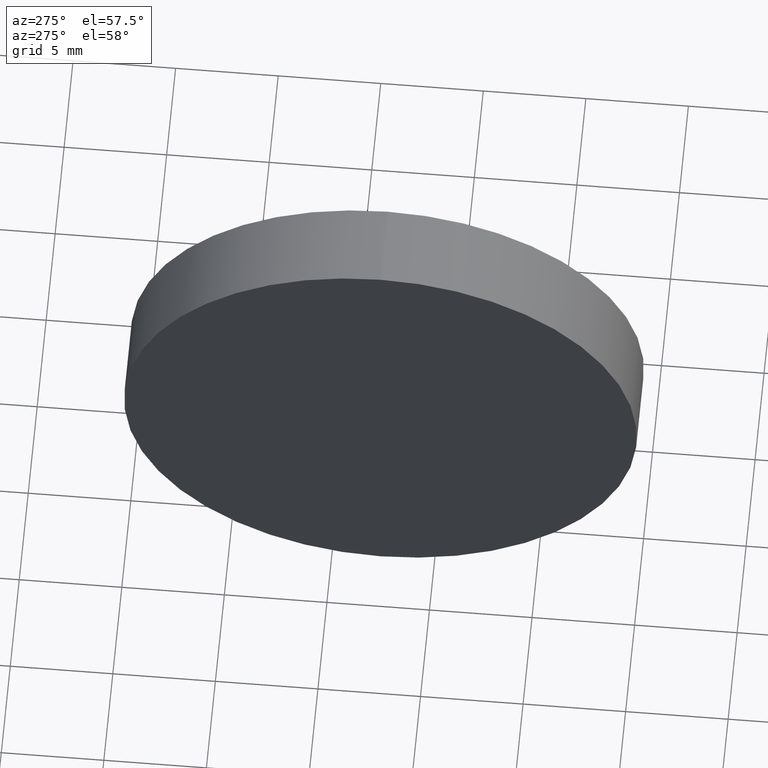
[diagram: clean part render]
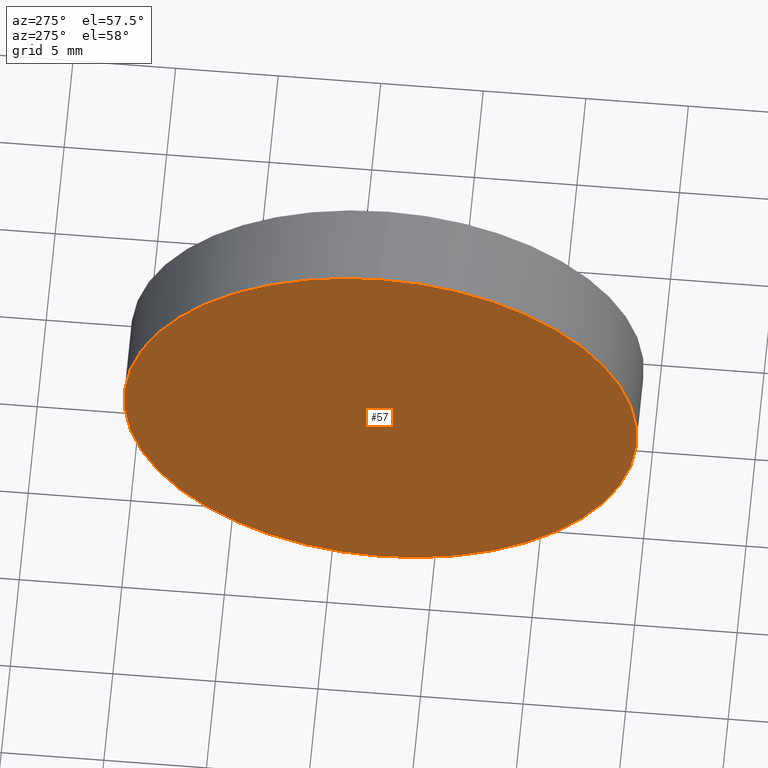
[diagram: same view with one face highlighted and labeled with its STEP entity id]
A machine part, auxiliary view. The second image highlights one B-rep face of the part: STEP entity #57.
In plain terms, the highlighted planar face has unit normal (1, 0, 0).
Its self-contained STEP definition (entity closure, byte-faithful):
#1 = ORIENTED_EDGE ( 'NONE', *, *, #24, .T. ) ;
#2 = CARTESIAN_POINT ( 'NONE',  ( 57.53233705252611700, 32.61076812922678400, 0.0000000000000000000 ) ) ;
#3 = DIRECTION ( 'NONE',  ( -1.000000000000000000, -0.0000000000000000000, -0.0000000000000000000 ) ) ;
#5 = CARTESIAN_POINT ( 'NONE',  ( 57.53233705252611700, 32.61076812922678400, -12.49999999999999600 ) ) ;
#15 = VERTEX_POINT ( 'NONE', #150 ) ;
#24 = EDGE_CURVE ( 'NONE', #15, #141, #40, .T. ) ;
#28 = DIRECTION ( 'NONE',  ( 0.0000000000000000000, 0.0000000000000000000, -1.000000000000000000 ) ) ;
#40 = CIRCLE ( 'NONE', #63, 12.49999999999999600 ) ;
#43 = DIRECTION ( 'NONE',  ( 0.0000000000000000000, 0.0000000000000000000, 1.000000000000000000 ) ) ;
#57 = ADVANCED_FACE ( 'NONE', ( #83 ), #162, .F. ) ;
#59 = AXIS2_PLACEMENT_3D ( 'NONE', #2, #3, #115 ) ;
#63 = AXIS2_PLACEMENT_3D ( 'NONE', #132, #78, #43 ) ;
#65 = AXIS2_PLACEMENT_3D ( 'NONE', #166, #108, #28 ) ;
#69 = EDGE_LOOP ( 'NONE', ( #1, #142 ) ) ;
#78 = DIRECTION ( 'NONE',  ( -1.000000000000000000, -0.0000000000000000000, -0.0000000000000000000 ) ) ;
#79 = CIRCLE ( 'NONE', #59, 12.49999999999999600 ) ;
#83 = FACE_OUTER_BOUND ( 'NONE', #69, .T. ) ;
#108 = DIRECTION ( 'NONE',  ( 1.000000000000000000, 0.0000000000000000000, 0.0000000000000000000 ) ) ;
#115 = DIRECTION ( 'NONE',  ( 0.0000000000000000000, 0.0000000000000000000, 1.000000000000000000 ) ) ;
#132 = CARTESIAN_POINT ( 'NONE',  ( 57.53233705252611700, 32.61076812922678400, 0.0000000000000000000 ) ) ;
#141 = VERTEX_POINT ( 'NONE', #5 ) ;
#142 = ORIENTED_EDGE ( 'NONE', *, *, #152, .T. ) ;
#150 = CARTESIAN_POINT ( 'NONE',  ( 57.53233705252611700, 32.61076812922678400, 12.49999999999999600 ) ) ;
#152 = EDGE_CURVE ( 'NONE', #141, #15, #79, .T. ) ;
#162 = PLANE ( 'NONE',  #65 ) ;
#166 = CARTESIAN_POINT ( 'NONE',  ( 57.53233705252611700, 32.61076812922678400, 0.0000000000000000000 ) ) ;